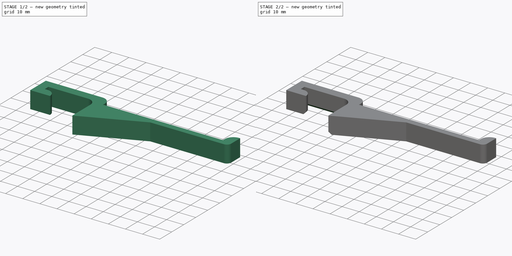
[diagram: build sequence overview — one tinted view per stage of 2, left to right]
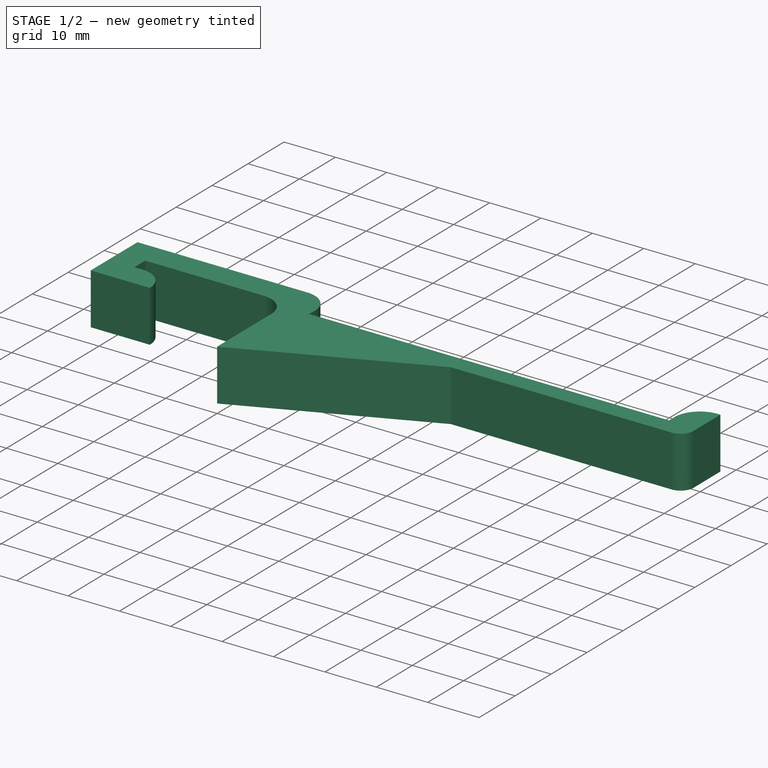
[diagram: stage 1 of 2 — iso view after this stage's code; geometry added in this stage tinted green]
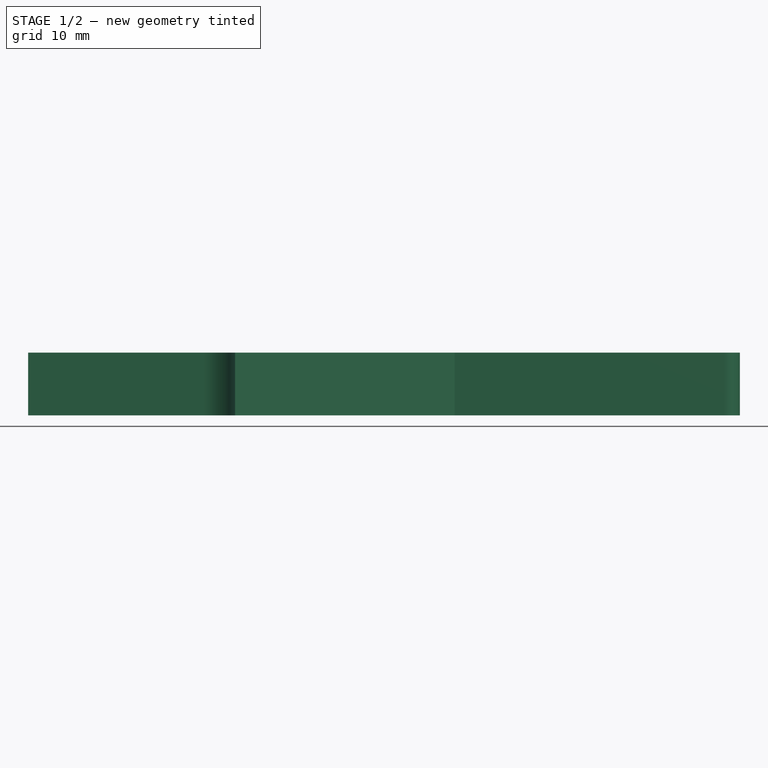
[diagram: stage 1 of 2 — front view after this stage's code; geometry added in this stage tinted green]
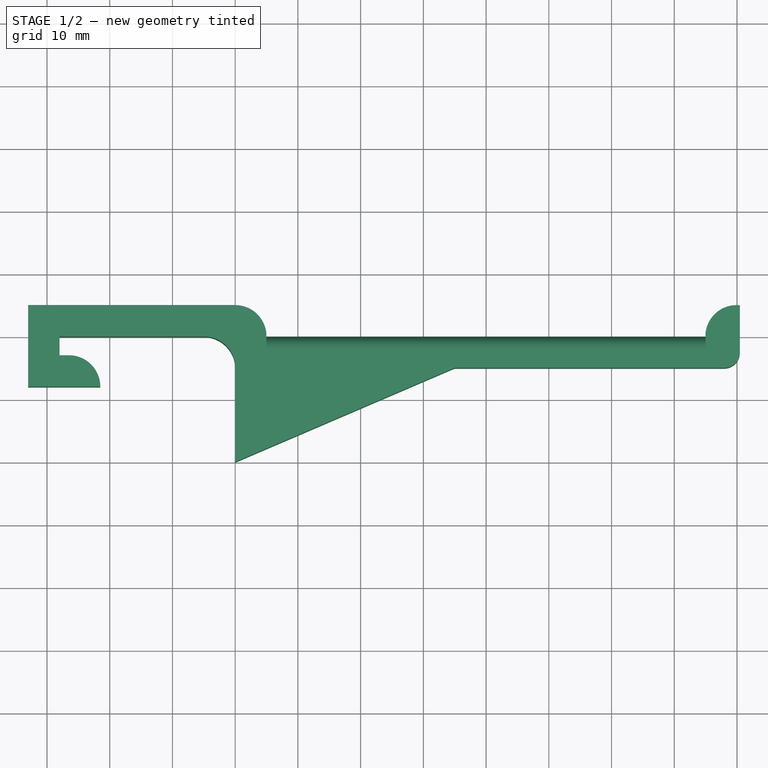
[diagram: stage 1 of 2 — top view after this stage's code; geometry added in this stage tinted green]
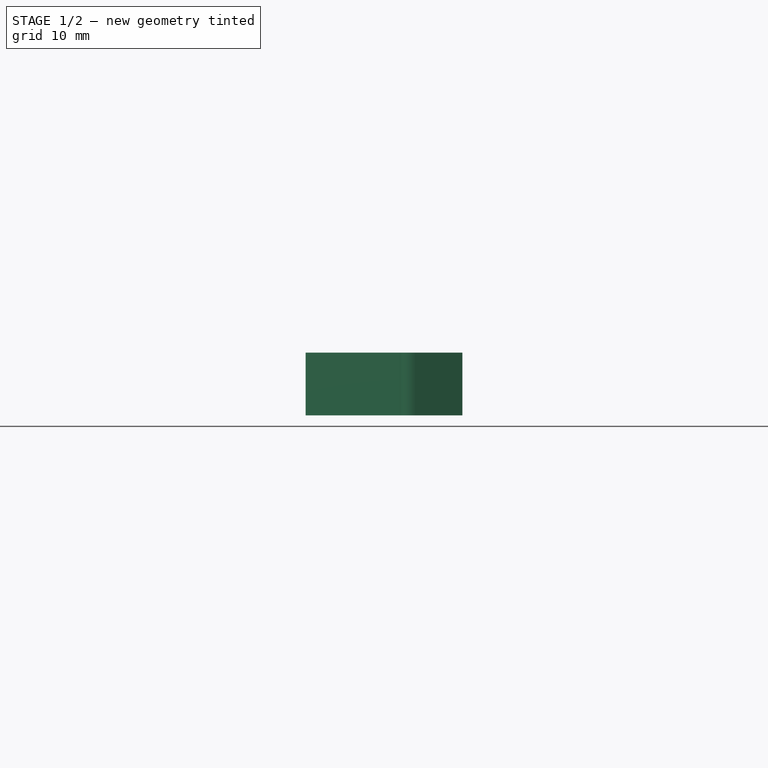
[diagram: stage 1 of 2 — right view after this stage's code; geometry added in this stage tinted green]
FCSTD DOCUMENT  (FreeCAD 0.17RUnknown)
Label: rear-mounted-fillament-hanger
License: All rights reserved
LicenseURL: http://en.wikipedia.org/wiki/All_rights_reserved
objects: Sketcher::SketchObject×2, PartDesign::Pad×1, PartDesign::Fillet×1, PartDesign::Chamfer×1, PartDesign::Body×1
note: 7 computed .brp shape members not serialized (recipe doc carries the construction recipe); baked Part::Feature solids carry a one-line shape summary decoded from their .brp

FEATURE [Sketcher::SketchObject] Sketch
  MapMode = 5
  Support = -> [XY_Plane]
  expr: Constraints[24] = 1.5
  expr: Constraints[48] = Constraints.mat_thickness / 2
  expr: Constraints[44] = Constraints.mat_thickness
  expr: Constraints[25] = Constraints.mat_thickness
  expr: Constraints[17] = Constraints.mat_thickness
  sketch-geometry (19):
    g0: LineSegment StartX=4.97494 StartY=0 StartZ=0 EndX=74.9749 EndY=0 EndZ=0
    g1: LineSegment StartX=80.4499 StartY=4.97494 StartZ=0 EndX=80.4499 EndY=-2.5 EndZ=0
    g2: LineSegment StartX=77.9499 StartY=-5 StartZ=0 EndX=34.9749 EndY=-5 EndZ=0
    g3: ArcOfCircle CenterX=0 CenterY=0 CenterZ=0 NormalX=0 NormalY=0 NormalZ=1 AngleXU=0 Radius=5 StartAngle=0.100167 EndAngle=1.5708
    g4: ArcOfCircle CenterX=79.9499 CenterY=0 CenterZ=0 NormalX=0 NormalY=0 NormalZ=1 AngleXU=0 Radius=5 StartAngle=1.47063 EndAngle=3.04143
    g5: LineSegment StartX=-2.25928e-05 StartY=5 StartZ=0 EndX=-33 EndY=5 EndZ=0
    g6: LineSegment StartX=-33 StartY=5 StartZ=0 EndX=-33 EndY=-8 EndZ=0
    g7: LineSegment StartX=-33 StartY=-8 StartZ=0 EndX=-21.5 EndY=-8 EndZ=0
    g8: ArcOfCircle CenterX=-26.5 CenterY=-8 CenterZ=0 NormalX=0 NormalY=0 NormalZ=1 AngleXU=0 Radius=5 StartAngle=0 EndAngle=1.5708
    g9: LineSegment StartX=-26.5 StartY=-3 StartZ=0 EndX=-28 EndY=-3 EndZ=0
    g10: LineSegment StartX=-28 StartY=-3 StartZ=0 EndX=-28 EndY=0 EndZ=0
    g11: LineSegment StartX=0 StartY=-20 StartZ=0 EndX=34.9749 EndY=-5 EndZ=0
    g12: GeomPoint X=-26.5 Y=-3 Z=0
    g13: LineSegment StartX=-28 StartY=0 StartZ=0 EndX=-5 EndY=0 EndZ=0
    g14: LineSegment StartX=0 StartY=-20 StartZ=0 EndX=0 EndY=-5 EndZ=0
    g15: ArcOfCircle CenterX=-5 CenterY=-5 CenterZ=0 NormalX=0 NormalY=0 NormalZ=1 AngleXU=0 Radius=5 StartAngle=-6.66e-10 EndAngle=1.5708
    g16: ArcOfCircle CenterX=77.9499 CenterY=-2.5 CenterZ=0 NormalX=0 NormalY=0 NormalZ=1 AngleXU=0 Radius=2.5 StartAngle=4.71239 EndAngle=6.28319
    g17: LineSegment StartX=74.9749 StartY=0 StartZ=0 EndX=74.9749 EndY=0.5 EndZ=0
    g18: LineSegment StartX=4.97494 StartY=0 StartZ=0 EndX=4.97494 EndY=0.5 EndZ=0
  constraints (58):
    c: Vertical(g1)
    c: Horizontal(g2)
    c: Radius(g3) = 5
    c: PointOnObject(g4,g-1)
    c: Coincident(g4,g1)
    c: Equal(g3,g4)
    c: Distance(g0) = 70
    c: Angle(g4) = 1.5708
    c: Distance(g0,g2) = 5  'mat_thickness'
    c: Horizontal(g5)
    c: Coincident(g5,g6)
    c: Vertical(g6)
    c: Coincident(g6,g7)
    c: Horizontal(g7)
    c: PointOnObject(g8,g7)
    c: Coincident(g8,g7)
    c: Angle(g8) = 1.5708
    c: Radius(g8) = 5
    c: Coincident(g3,g5)
    c: Horizontal(g9)
    c: Tangent(g9,g8)
    c: Coincident(g10,g9)
    c: Vertical(g10)
    c: Distance(g10) = 3
    c: Distance(g9) = 1.5
    c: Distance(g10,g6) = 5
    c: Tangent(g3,g5)
    c: Perpendicular(g3,g0)
    c: Coincident(g3,g-1)
    c: Coincident(g11,g2)
    c: DistanceX(g2,g0) = 40
    c: Coincident(g12,g8)
    c: Coincident(g8,g9)
    c: Coincident(g13,g10)
    c: PointOnObject(g13,g-1)
    c: DistanceY(g11,g-1) = 20
    c: PointOnObject(g10,g-1)
    c: Coincident(g14,g11)
    c: Vertical(g14)
    c: PointOnObject(g11,g-2)
    c: Coincident(g15,g13)
    c: Coincident(g15,g14)
    c: Tangent(g15,g14)
    c: Tangent(g13,g15)
    c: Radius(g15) = 5
    c: DistanceX(g10,g-1) = 28
    c: Tangent(g1,g16) = 1.5708
    c: Tangent(g2,g16) = 1.5708
    c: Radius(g16) = 2.5
    c: Coincident(g17,g0)
    c: Coincident(g17,g4)
    c: Vertical(g17)
    c: Distance(g17) = 0.5
    c: PointOnObject(g0,g-1)
    c: Coincident(g18,g3)
    c: Vertical(g18)
    c: Coincident(g18,g0)
    c: Equal(g18,g17)
FEATURE [PartDesign::Pad] Pad
  Length = 10
  Length2 = 100
  Profile = -> Sketch
  Type = 0
FEATURE [Sketcher::SketchObject] Sketch001
  ExternalGeometry = -> [Pad]
  MapMode = 5
  Placement = pos=(0,0,10) rot=(0,0,1;0rad)
  Support = -> [Pad]
  expr: Constraints[8] = Sketch.Constraints.mat_thickness / 2
  expr: Constraints[7] = Sketch.Constraints.mat_thickness / 2
  expr: Constraints[6] = Sketch.Constraints.mat_thickness / 2
  expr: Constraints[5] = Sketch.Constraints.mat_thickness / 2
  sketch-geometry (3):
    g0: LineSegment StartX=2.5 StartY=-2.5 StartZ=0 EndX=34.9749 EndY=-2.5 EndZ=0
    g1: LineSegment StartX=34.9749 StartY=-2.5 StartZ=0 EndX=2.5 EndY=-16.2076 EndZ=0
    g2: LineSegment StartX=2.5 StartY=-16.2076 StartZ=0 EndX=2.5 EndY=-2.5 EndZ=0
  constraints (9):
    c: Horizontal(g0)
    c: Coincident(g0,g1)
    c: Coincident(g1,g2)
    c: Coincident(g2,g0)
    c: Vertical(g2)
    c: Distance(g1,g-4) = 2.5
    c: Distance(g1,g-3) = 2.5
    c: Distance(g0,g-5) = 2.5
    c: Distance(g0,g-3) = 2.5
FEATURE [PartDesign::Fillet] Fillet
  Base = -> Pad [Edge3,Edge4]
  BaseFeature = -> Pad
  Radius = 2
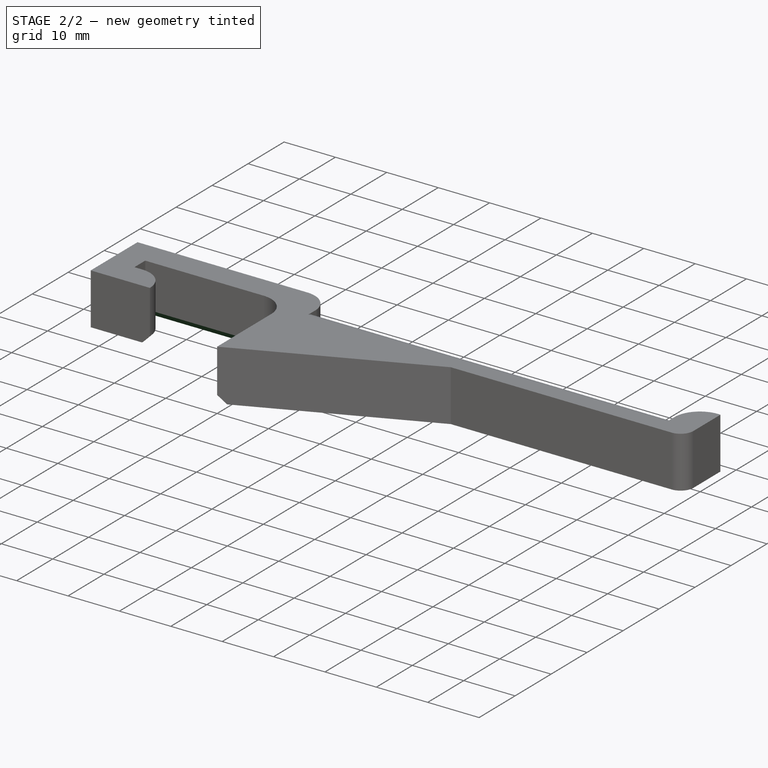
[diagram: stage 2 of 2 — iso view after this stage's code; geometry added in this stage tinted green]
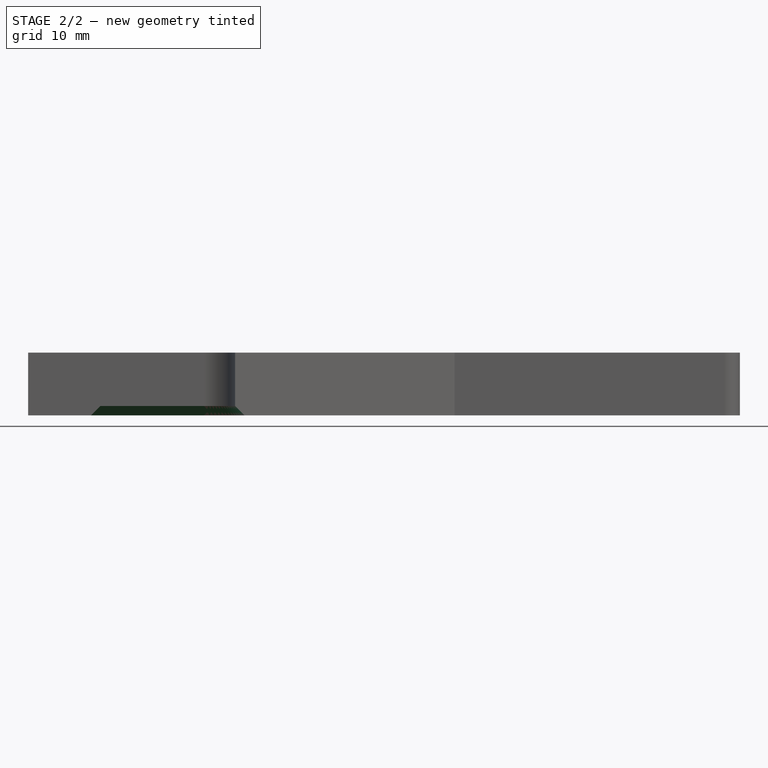
[diagram: stage 2 of 2 — front view after this stage's code; geometry added in this stage tinted green]
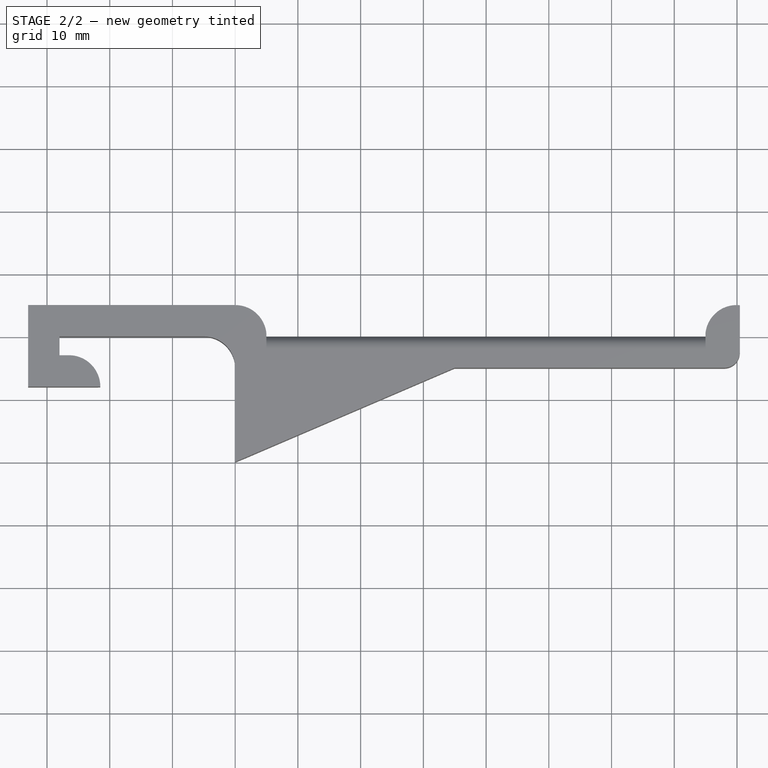
[diagram: stage 2 of 2 — top view after this stage's code; geometry added in this stage tinted green]
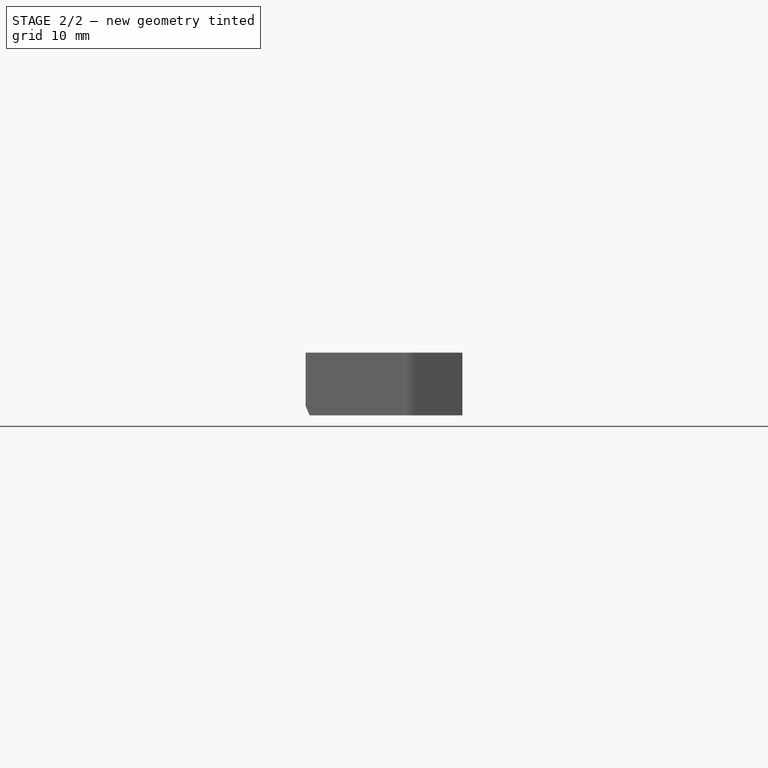
[diagram: stage 2 of 2 — right view after this stage's code; geometry added in this stage tinted green]
FEATURE [PartDesign::Chamfer] Chamfer
  Base = -> Fillet [Edge29,Edge27,Edge31,Edge33,Edge35,Edge34]
  BaseFeature = -> Fillet
  Size = 1.5
FEATURE [PartDesign::Body] Body
  Group = -> [Sketch,Pad,Sketch001,Fillet,Chamfer]
  Origin = -> Origin
  Tip = -> Chamfer
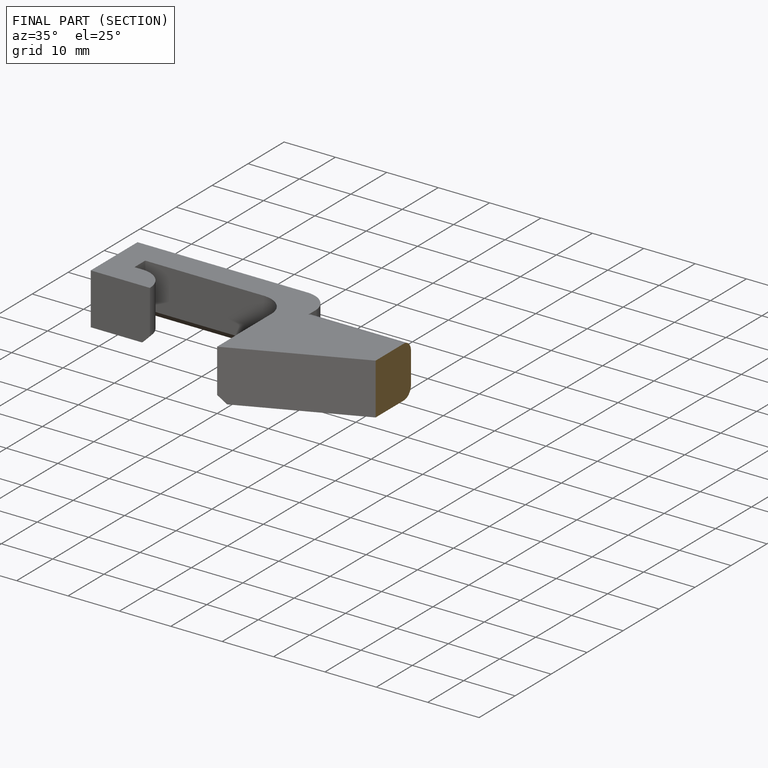
[diagram: finished part — half-section view (interior)]
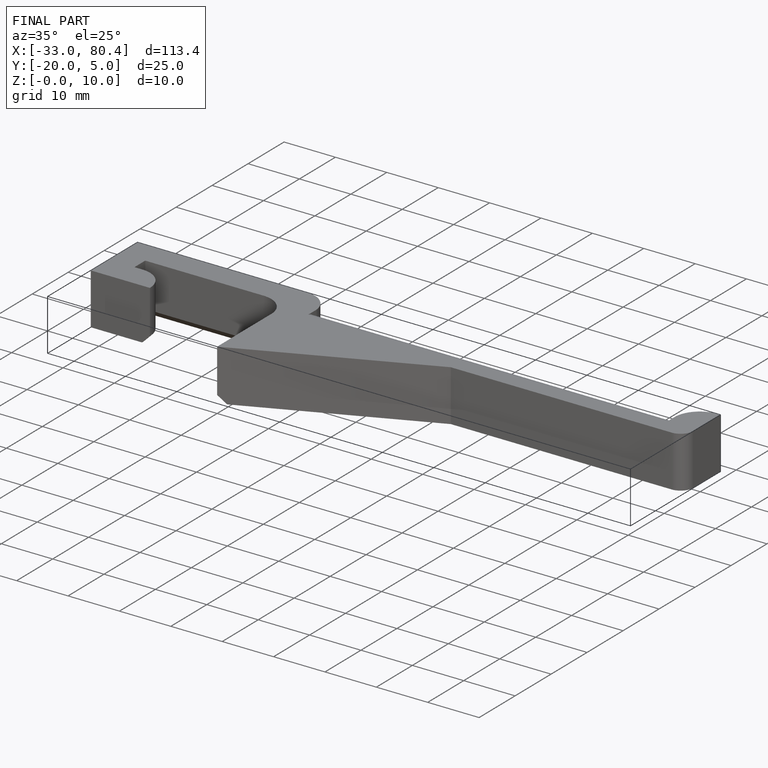
[diagram: finished part — iso view with bounding-box wireframe]
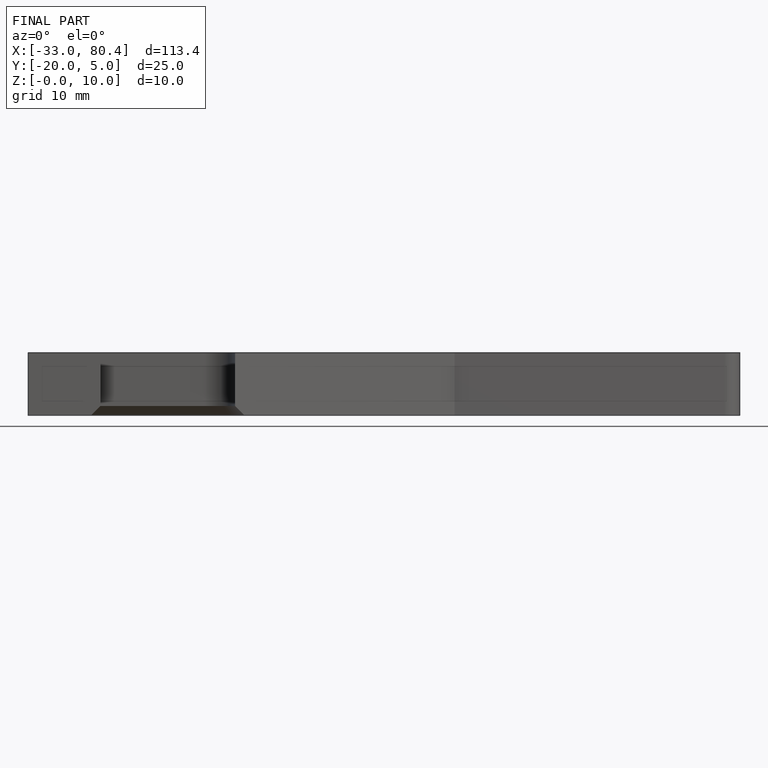
[diagram: finished part — front view with bounding-box wireframe]
